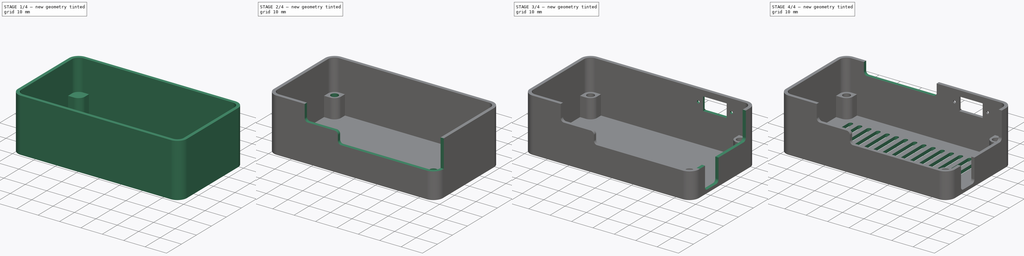
[diagram: build sequence overview — one tinted view per stage of 4, left to right]
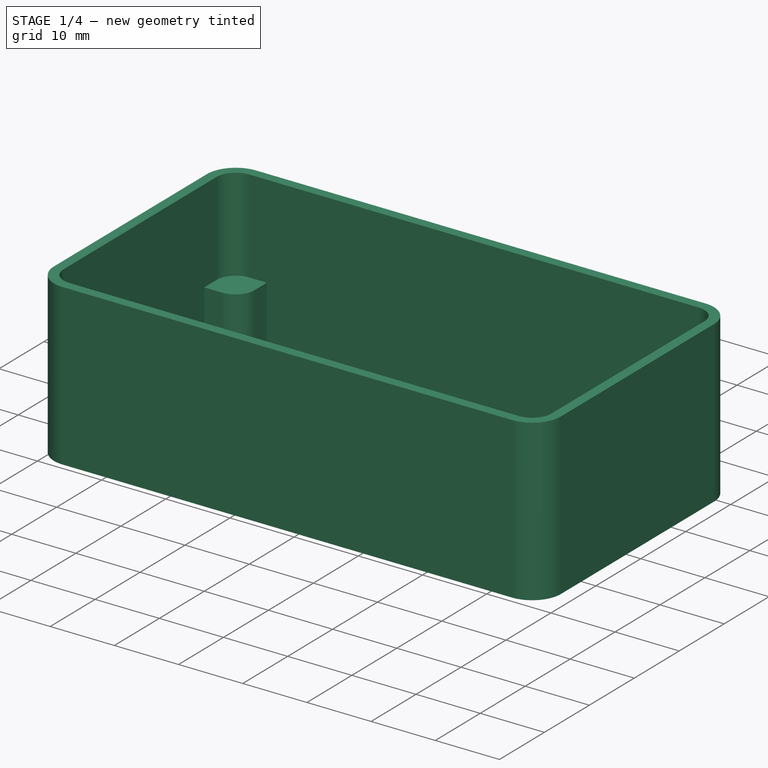
[diagram: stage 1 of 4 — iso view after this stage's code; geometry added in this stage tinted green]
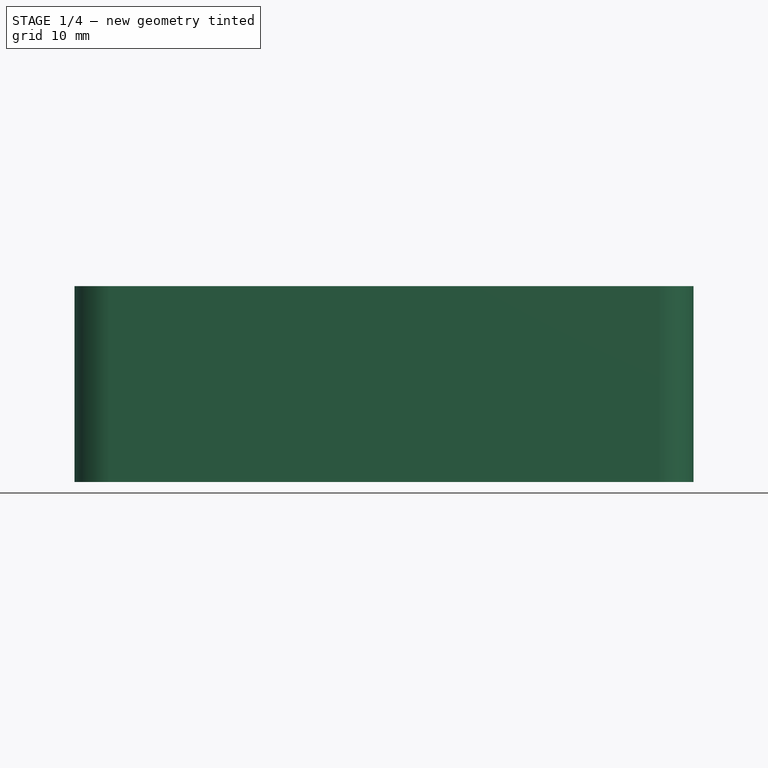
[diagram: stage 1 of 4 — front view after this stage's code; geometry added in this stage tinted green]
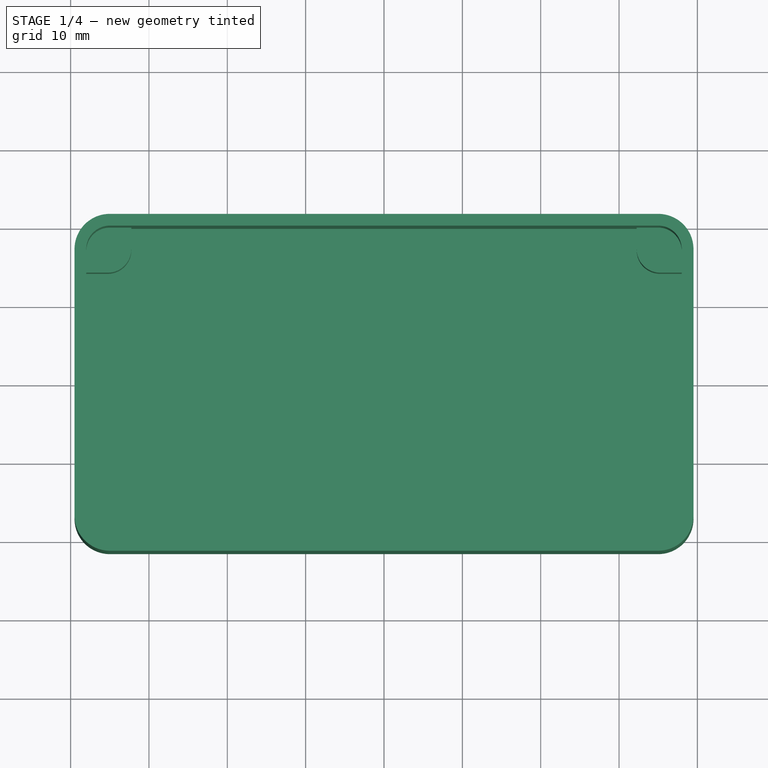
[diagram: stage 1 of 4 — top view after this stage's code; geometry added in this stage tinted green]
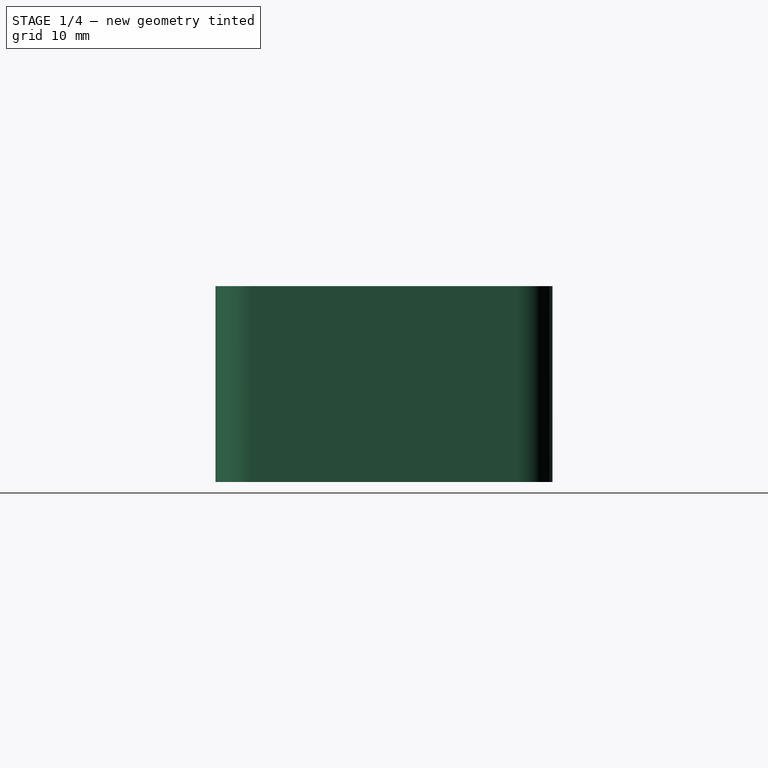
[diagram: stage 1 of 4 — right view after this stage's code; geometry added in this stage tinted green]
FCSTD DOCUMENT  (FreeCAD 0.20R29410 (Git))
Label: ENCLOSURE
License: All rights reserved
LicenseURL: http://en.wikipedia.org/wiki/All_rights_reserved
objects: Sketcher::SketchObject×10, PartDesign::Pocket×8, PartDesign::Pad×2, PartDesign::LinearPattern×1, PartDesign::Body×1
note: 32 computed .brp shape members not serialized (recipe doc carries the construction recipe); baked Part::Feature solids carry a one-line shape summary decoded from their .brp

FEATURE [Sketcher::SketchObject] Sketch
  FullyConstrained = true
  MapMode = 5
  Support = -> [XY_Plane]
  sketch-geometry (16):
    g0: LineSegment StartX=-35 StartY=20 StartZ=0 EndX=35 EndY=20 EndZ=0
    g1: LineSegment StartX=38 StartY=17 StartZ=0 EndX=38 EndY=-17 EndZ=0
    g2: LineSegment StartX=35 StartY=-20 StartZ=0 EndX=-35 EndY=-20 EndZ=0
    g3: LineSegment StartX=-38 StartY=-17 StartZ=0 EndX=-38 EndY=17 EndZ=0
    g4: ArcOfCircle CenterX=-35 CenterY=17 CenterZ=0 NormalX=0 NormalY=0 NormalZ=1 AngleXU=0 Radius=3 StartAngle=1.5708 EndAngle=3.14159
    g5: ArcOfCircle CenterX=35 CenterY=17 CenterZ=0 NormalX=0 NormalY=0 NormalZ=1 AngleXU=0 Radius=3 StartAngle=2e-16 EndAngle=1.5708
    g6: ArcOfCircle CenterX=35 CenterY=-17 CenterZ=0 NormalX=0 NormalY=0 NormalZ=1 AngleXU=0 Radius=3 StartAngle=4.71239 EndAngle=6.28319
    g7: ArcOfCircle CenterX=-35 CenterY=-17 CenterZ=0 NormalX=0 NormalY=0 NormalZ=1 AngleXU=0 Radius=3 StartAngle=3.14159 EndAngle=4.71239
    g8: LineSegment StartX=-35 StartY=21.5 StartZ=0 EndX=35 EndY=21.5 EndZ=0
    g9: LineSegment StartX=39.5 StartY=17 StartZ=0 EndX=39.5 EndY=-17 EndZ=0
    g10: LineSegment StartX=35 StartY=-21.5 StartZ=0 EndX=-35 EndY=-21.5 EndZ=0
    g11: LineSegment StartX=-39.5 StartY=-17 StartZ=0 EndX=-39.5 EndY=17 EndZ=0
    g12: ArcOfCircle CenterX=-35 CenterY=17 CenterZ=0 NormalX=0 NormalY=0 NormalZ=1 AngleXU=0 Radius=4.5 StartAngle=1.5708 EndAngle=3.14159
    g13: ArcOfCircle CenterX=-35 CenterY=-17 CenterZ=0 NormalX=0 NormalY=0 NormalZ=1 AngleXU=0 Radius=4.5 StartAngle=3.14159 EndAngle=4.71239
    g14: ArcOfCircle CenterX=35 CenterY=17 CenterZ=0 NormalX=0 NormalY=0 NormalZ=1 AngleXU=0 Radius=4.5 StartAngle=0 EndAngle=1.5708
    g15: ArcOfCircle CenterX=35 CenterY=-17 CenterZ=0 NormalX=0 NormalY=0 NormalZ=1 AngleXU=0 Radius=4.5 StartAngle=4.71239 EndAngle=6.28319
  constraints (35):
    c: Horizontal(g0)
    c: Horizontal(g2)
    c: Vertical(g1)
    c: Vertical(g3)
    c: Tangent(g3,g4) = 1.5708
    c: Tangent(g0,g4) = 1.5708
    c: Tangent(g0,g5) = 1.5708
    c: Tangent(g1,g5) = 1.5708
    c: Tangent(g2,g6) = 1.5708
    c: Tangent(g1,g6) = 1.5708
    c: Tangent(g3,g7) = 1.5708
    c: Tangent(g2,g7) = 1.5708
    c: Equal(g7,g4)
    c: Equal(g4,g5)
    c: Equal(g5,g6)
    c: Radius(g5) = 3
    c: Symmetric(g4,g6,g-1)
    c: DistanceY(g2,g0) = 40
    c: Horizontal(g8)
    c: Horizontal(g10)
    c: Vertical(g9)
    c: Tangent(g11,g12) = 1.5708
    c: Tangent(g8,g12) = 1.5708
    c: Tangent(g11,g13) = 1.5708
    c: Tangent(g10,g13) = 1.5708
    c: Tangent(g8,g14) = 1.5708
    c: Tangent(g9,g14) = 1.5708
    c: Tangent(g9,g15) = 1.5708
    c: Tangent(g10,g15) = 1.5708
    c: Coincident(g13,g7)
    c: DistanceX(g3,g1) = 76
    c: Symmetric(g11,g9,g-2)
    c: Coincident(g15,g6)
    c: DistanceX(g11,g3) = 1.5
    c: Coincident(g12,g4)
FEATURE [PartDesign::Pad] Pad
  Direction = (0,0,1)
  Length = 25
  Length2 = 10
  Profile = -> Sketch
  ReferenceAxis = -> Sketch [N_Axis]
  Type = 0
FEATURE [Sketcher::SketchObject] Sketch001
  ExternalGeometry = -> [Pad]
  FullyConstrained = true
  MapMode = 5
  Placement = pos=(0,0,25) rot=(0,0,1;0rad)
  Support = -> [Pad]
  sketch-geometry (8):
    g0: LineSegment StartX=35 StartY=20 StartZ=0 EndX=-35 EndY=20 EndZ=0
    g1: LineSegment StartX=-38 StartY=17 StartZ=0 EndX=-38 EndY=-17 EndZ=0
    g2: LineSegment StartX=-35 StartY=-20 StartZ=0 EndX=35 EndY=-20 EndZ=0
    g3: LineSegment StartX=38 StartY=-17 StartZ=0 EndX=38 EndY=17 EndZ=0
    g4: ArcOfCircle CenterX=35 CenterY=17 CenterZ=0 NormalX=0 NormalY=0 NormalZ=1 AngleXU=0 Radius=3 StartAngle=1.3017e-12 EndAngle=1.5708
    g5: ArcOfCircle CenterX=35 CenterY=-17 CenterZ=0 NormalX=0 NormalY=0 NormalZ=1 AngleXU=0 Radius=3 StartAngle=4.71239 EndAngle=6.28319
    g6: ArcOfCircle CenterX=-35 CenterY=-17 CenterZ=0 NormalX=0 NormalY=0 NormalZ=1 AngleXU=0 Radius=3 StartAngle=3.14159 EndAngle=4.71239
    g7: ArcOfCircle CenterX=-35 CenterY=17 CenterZ=0 NormalX=0 NormalY=0 NormalZ=1 AngleXU=0 Radius=3 StartAngle=1.5708 EndAngle=3.14159
  constraints (18):
    c: Horizontal(g0)
    c: Horizontal(g2)
    c: Vertical(g1)
    c: Vertical(g3)
    c: Tangent(g0,g4) = -1.5708
    c: Tangent(g3,g4) = -1.5708
    c: Tangent(g3,g5) = -1.5708
    c: Tangent(g2,g5) = -1.5708
    c: Tangent(g1,g6) = -1.5708
    c: Tangent(g2,g6) = -1.5708
    c: Tangent(g1,g7) = -1.5708
    c: Tangent(g0,g7) = -1.5708
    c: Equal(g7,g4)
    c: Equal(g4,g5)
    c: Equal(g5,g6)
    c: Coincident(g-5,g4)
    c: DistanceX(g3,g-5) = 1.5
    c: Coincident(g6,g-6)
FEATURE [PartDesign::Pocket] Pocket
  BaseFeature = -> Pad
  Direction = (0,0,-1)
  Length = 23.5
  Length2 = 5
  Profile = -> Sketch001
  ReferenceAxis = -> Sketch001 [N_Axis]
  Type = 0
FEATURE [Sketcher::SketchObject] Sketch002
  ExternalGeometry = -> [Pocket]
  FullyConstrained = true
  MapMode = 5
  Placement = pos=(0,0,1.5) rot=(0,0,1;0rad)
  Support = -> [Pocket]
  sketch-geometry (28):
    g0: LineSegment StartX=-35 StartY=20 StartZ=0 EndX=-32.25 EndY=20 EndZ=0
    g1: LineSegment StartX=-32.25 StartY=20 StartZ=0 EndX=-32.25 EndY=17.25 EndZ=0
    g2: LineSegment StartX=-35.25 StartY=14.25 StartZ=0 EndX=-38 EndY=14.25 EndZ=0
    g3: LineSegment StartX=-38 StartY=14.25 StartZ=0 EndX=-38 EndY=17 EndZ=0
    g4: LineSegment StartX=35 StartY=20 StartZ=0 EndX=32.25 EndY=20 EndZ=0
    g5: LineSegment StartX=32.25 StartY=20 StartZ=0 EndX=32.25 EndY=17.25 EndZ=0
    g6: LineSegment StartX=35.25 StartY=14.25 StartZ=0 EndX=38 EndY=14.25 EndZ=0
    g7: LineSegment StartX=38 StartY=14.25 StartZ=0 EndX=38 EndY=17 EndZ=0
    g8: LineSegment StartX=-38 StartY=-14.25 StartZ=0 EndX=-35.25 EndY=-14.25 EndZ=0
    g9: LineSegment StartX=-32.25 StartY=-17.25 StartZ=0 EndX=-32.25 EndY=-20 EndZ=0
    g10: LineSegment StartX=-32.25 StartY=-20 StartZ=0 EndX=-35 EndY=-20 EndZ=0
    g11: LineSegment StartX=-38 StartY=-17 StartZ=0 EndX=-38 EndY=-14.25 EndZ=0
    g12: LineSegment StartX=35.25 StartY=-14.25 StartZ=0 EndX=38 EndY=-14.25 EndZ=0
    g13: LineSegment StartX=38 StartY=-14.25 StartZ=0 EndX=38 EndY=-17 EndZ=0
    g14: LineSegment StartX=35 StartY=-20 StartZ=0 EndX=32.25 EndY=-20 EndZ=0
    g15: LineSegment StartX=32.25 StartY=-20 StartZ=0 EndX=32.25 EndY=-17.25 EndZ=0
    g16: ArcOfCircle CenterX=-35 CenterY=17 CenterZ=0 NormalX=0 NormalY=0 NormalZ=1 AngleXU=0 Radius=3 StartAngle=1.5708 EndAngle=3.14159
    g17: ArcOfCircle CenterX=-35.25 CenterY=17.25 CenterZ=0 NormalX=0 NormalY=0 NormalZ=1 AngleXU=0 Radius=3 StartAngle=4.71239 EndAngle=6.28319
    g18: ArcOfCircle CenterX=35 CenterY=17 CenterZ=0 NormalX=0 NormalY=0 NormalZ=1 AngleXU=0 Radius=3 StartAngle=0 EndAngle=1.5708
    g19: ArcOfCircle CenterX=35.25 CenterY=17.25 CenterZ=0 NormalX=0 NormalY=0 NormalZ=1 AngleXU=0 Radius=3 StartAngle=3.14159 EndAngle=4.71239
    g20: ArcOfCircle CenterX=-35.25 CenterY=-17.25 CenterZ=0 NormalX=0 NormalY=0 NormalZ=1 AngleXU=0 Radius=3 StartAngle=-3.99503e-11 EndAngle=1.5708
    g21: ArcOfCircle CenterX=-35 CenterY=-17 CenterZ=0 NormalX=0 NormalY=0 NormalZ=1 AngleXU=0 Radius=3 StartAngle=3.14159 EndAngle=4.71239
    g22: ArcOfCircle CenterX=35.25 CenterY=-17.25 CenterZ=0 NormalX=0 NormalY=0 NormalZ=1 AngleXU=0 Radius=3 StartAngle=1.5708 EndAngle=3.14159
    g23: ArcOfCircle CenterX=35 CenterY=-17 CenterZ=0 NormalX=0 NormalY=0 NormalZ=1 AngleXU=0 Radius=3 StartAngle=4.71239 EndAngle=6.28319
    g24: Circle CenterX=35.25 CenterY=17.25 CenterZ=0 NormalX=0 NormalY=0 NormalZ=1 AngleXU=0 Radius=1.6
    g25: Circle CenterX=-35.25 CenterY=17.25 CenterZ=0 NormalX=0 NormalY=0 NormalZ=1 AngleXU=0 Radius=1.6
    g26: Circle CenterX=-35.25 CenterY=-17.25 CenterZ=0 NormalX=0 NormalY=0 NormalZ=1 AngleXU=0 Radius=1.6
    g27: Circle CenterX=35.25 CenterY=-17.25 CenterZ=0 NormalX=0 NormalY=0 NormalZ=1 AngleXU=0 Radius=1.6
  constraints (68):
    c: Coincident(g0,g1)
    c: Coincident(g2,g3)
    c: Horizontal(g0)
    c: Horizontal(g2)
    c: Vertical(g1)
    c: Coincident(g4,g5)
    c: Coincident(g6,g7)
    c: Horizontal(g4)
    c: Horizontal(g6)
    c: Vertical(g5)
    c: Vertical(g7)
    c: Coincident(g9,g10)
    c: Coincident(g11,g8)
    c: Horizontal(g8)
    c: Horizontal(g10)
    c: Vertical(g9)
    c: Vertical(g11)
    c: Coincident(g12,g13)
    c: Coincident(g14,g15)
    c: Horizontal(g12)
    c: Horizontal(g14)
    c: Vertical(g13)
    c: Vertical(g15)
    c: Tangent(g3,g16) = 1.5708
    c: Tangent(g0,g16) = 1.5708
    c: Tangent(g2,g17) = 1.5708
    c: Tangent(g1,g17) = 1.5708
    c: Tangent(g4,g18) = -1.5708
    c: Tangent(g7,g18) = -1.5708
    c: Tangent(g5,g19) = -1.5708
    c: Tangent(g6,g19) = -1.5708
    c: Tangent(g8,g20) = 1.5708
    c: Tangent(g9,g20) = 1.5708
    c: Tangent(g11,g21) = 1.5708
    c: Tangent(g10,g21) = 1.5708
    c: Tangent(g15,g22) = 1.5708
    c: Tangent(g12,g22) = 1.5708
    c: Tangent(g14,g23) = 1.5708
    c: Tangent(g13,g23) = 1.5708
    c: Equal(g18,g23)
    c: Equal(g23,g21)
    c: Equal(g21,g16)
    c: Equal(g20,g22)
    c: Equal(g22,g19)
    c: Equal(g19,g17)
    c: Equal(g1,g5)
    c: Equal(g2,g6)
    c: Equal(g6,g12)
    c: Equal(g12,g15)
    c: Equal(g15,g9)
    c: Equal(g9,g8)
    c: Coincident(g21,g-4)
    c: Coincident(g16,g-3)
    c: Coincident(g3,g-3)
    c: Coincident(g-5,g23)
    c: Coincident(g18,g-6)
    c: Equal(g6,g5)
    c: Equal(g25,g24)
    c: Equal(g24,g27)
    c: Equal(g27,g26)
    c: Diameter(g26) = 3.2
    c: Symmetric(g25,g27,g-1)
    c: Symmetric(g26,g24,g-1)
    c: DistanceX(g25,g24) = 70.5
    c: DistanceY(g26,g25) = 34.5
    c: Vertical(g27,g24)
    c: Coincident(g22,g27)
    c: Radius(g22) = 3
FEATURE [PartDesign::Pad] Pad001
  BaseFeature = -> Pocket
  Direction = (0,0,1)
  Length = 9
  Length2 = 10
  Profile = -> Sketch002
  ReferenceAxis = -> Sketch002 [N_Axis]
  Type = 0
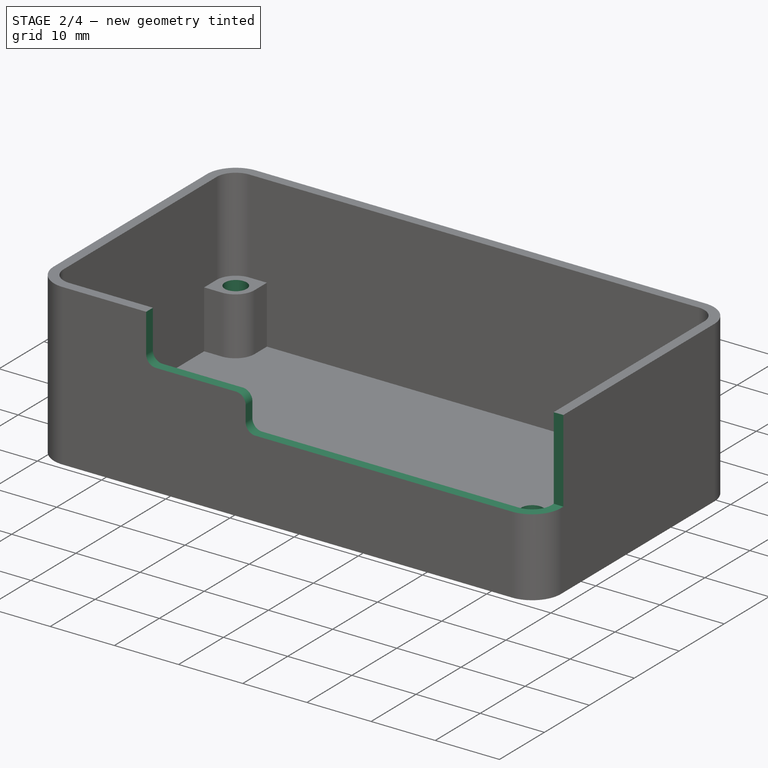
[diagram: stage 2 of 4 — iso view after this stage's code; geometry added in this stage tinted green]
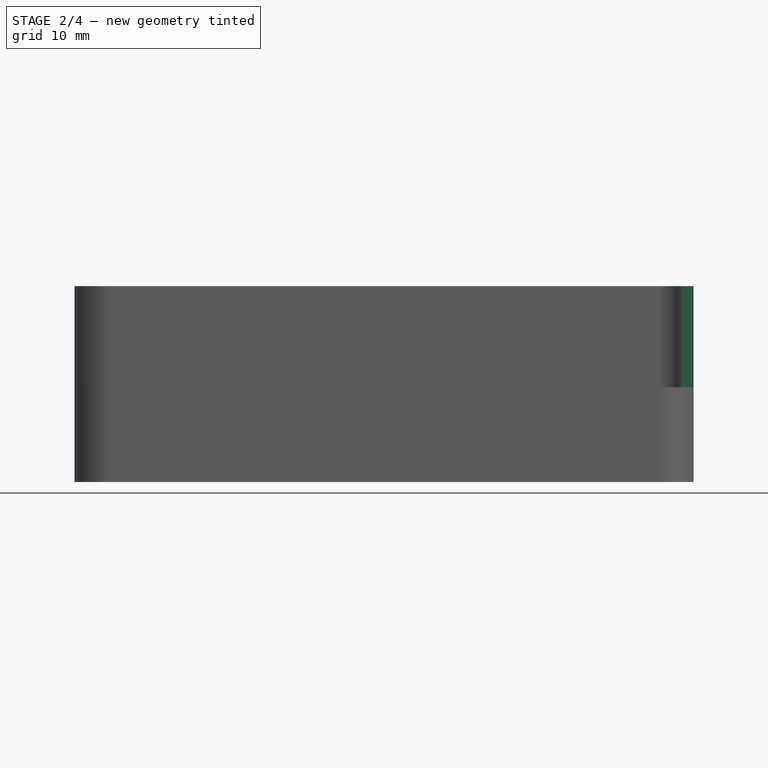
[diagram: stage 2 of 4 — front view after this stage's code; geometry added in this stage tinted green]
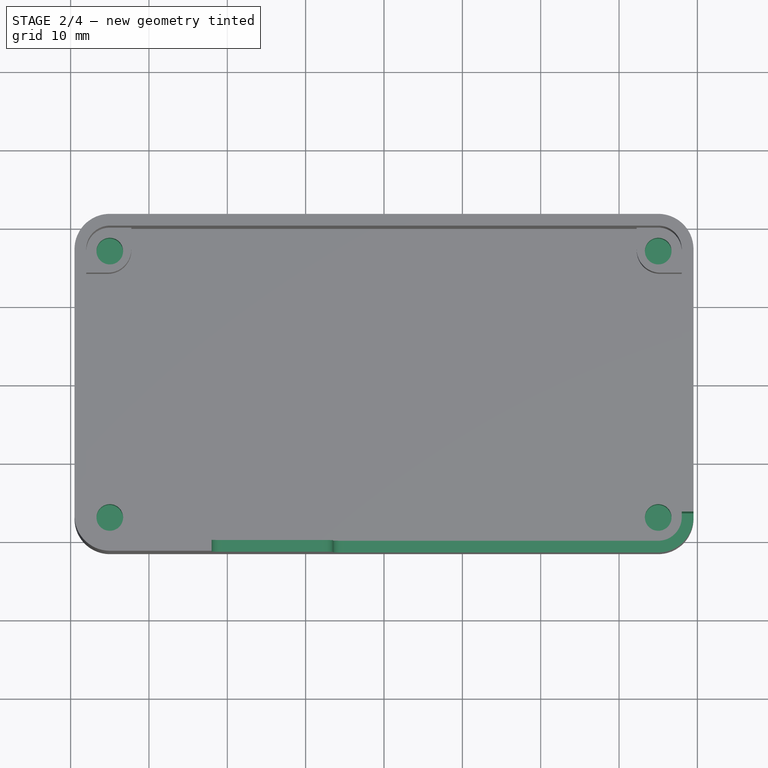
[diagram: stage 2 of 4 — top view after this stage's code; geometry added in this stage tinted green]
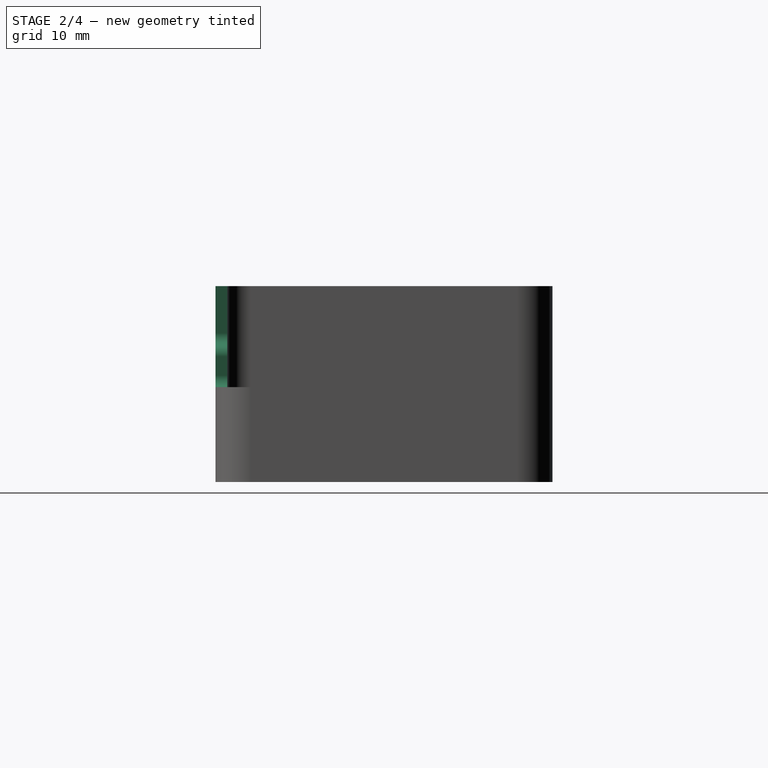
[diagram: stage 2 of 4 — right view after this stage's code; geometry added in this stage tinted green]
FEATURE [Sketcher::SketchObject] Sketch003
  ExternalGeometry = -> [Pad001]
  FullyConstrained = true
  MapMode = 5
  Placement = pos=(0,0,10.5) rot=(0,0,1;0rad)
  Support = -> [Pad001]
  sketch-geometry (4):
    g0: Circle CenterX=-35 CenterY=17 CenterZ=0 NormalX=0 NormalY=0 NormalZ=1 AngleXU=0 Radius=1.7
    g1: Circle CenterX=-35 CenterY=-17 CenterZ=0 NormalX=0 NormalY=0 NormalZ=1 AngleXU=0 Radius=1.7
    g2: Circle CenterX=35 CenterY=-17 CenterZ=0 NormalX=0 NormalY=0 NormalZ=1 AngleXU=0 Radius=1.7
    g3: Circle CenterX=35 CenterY=17 CenterZ=0 NormalX=0 NormalY=0 NormalZ=1 AngleXU=0 Radius=1.7
  constraints (8):
    c: Coincident(g0,g-6)
    c: Coincident(g1,g-4)
    c: Coincident(g2,g-3)
    c: Coincident(g3,g-5)
    c: Equal(g3,g2)
    c: Equal(g2,g1)
    c: Equal(g1,g0)
    c: Diameter(g0) = 3.4
FEATURE [PartDesign::Pocket] Pocket001
  BaseFeature = -> Pad001
  Direction = (0,0,-1)
  Length = 6
  Length2 = 5
  Profile = -> Sketch003
  ReferenceAxis = -> Sketch003 [N_Axis]
  Type = 0
FEATURE [Sketcher::SketchObject] Sketch004
  ExternalGeometry = -> [Pocket001]
  FullyConstrained = true
  MapMode = 5
  Placement = pos=(0,-21.5,0) rot=(1,0,0;1.5708rad)
  Support = -> [Pocket001]
  sketch-geometry (9):
    g0: LineSegment StartX=-22 StartY=25 StartZ=0 EndX=39.5 EndY=25 EndZ=0
    g1: LineSegment StartX=-22 StartY=19 StartZ=0 EndX=-22 EndY=25 EndZ=0
    g2: ArcOfCircle CenterX=-20.5 CenterY=19 CenterZ=0 NormalX=0 NormalY=0 NormalZ=1 AngleXU=0 Radius=1.5 StartAngle=3.14159 EndAngle=4.71239
    g3: LineSegment StartX=-20.5 StartY=17.5 StartZ=0 EndX=-8 EndY=17.5 EndZ=0
    g4: LineSegment StartX=-6.5 StartY=16 StartZ=0 EndX=-6.5 EndY=13.6 EndZ=0
    g5: LineSegment StartX=-5 StartY=12.1 StartZ=0 EndX=39.5 EndY=12.1 EndZ=0
    g6: LineSegment StartX=39.5 StartY=12.1 StartZ=0 EndX=39.5 EndY=25 EndZ=0
    g7: ArcOfCircle CenterX=-5 CenterY=13.6 CenterZ=0 NormalX=0 NormalY=0 NormalZ=1 AngleXU=0 Radius=1.5 StartAngle=3.14159 EndAngle=4.71239
    g8: ArcOfCircle CenterX=-8 CenterY=16 CenterZ=0 NormalX=0 NormalY=0 NormalZ=1 AngleXU=0 Radius=1.5 StartAngle=5e-16 EndAngle=1.5708
  constraints (23):
    c: Coincident(g1,g0)
    c: Horizontal(g0)
    c: Vertical(g1)
    c: Tangent(g1,g2) = 1.5708
    c: DistanceX(g-3,g0) = 16
    c: Coincident(g0,g-4)
    c: Tangent(g2,g3) = -1.5708
    c: Horizontal(g5)
    c: Coincident(g5,g6)
    c: Coincident(g6,g0)
    c: Vertical(g6)
    c: Vertical(g4)
    c: Tangent(g4,g7) = -1.5708
    c: Tangent(g5,g7) = -1.5708
    c: DistanceY(g-6,g5) = 1.6
    c: Equal(g7,g2)
    c: Radius(g7) = 1.5
    c: Horizontal(g3)
    c: DistanceY(g2,g0) = 7.5
    c: Tangent(g3,g8) = 1.5708
    c: Tangent(g4,g8) = 1.5708
    c: Equal(g7,g8)
    c: DistanceX(g1,g4) = 15.5
FEATURE [PartDesign::Pocket] Pocket002
  BaseFeature = -> Pocket001
  Direction = (0,1,-2e-16)
  Length = 5
  Length2 = 5
  Profile = -> Sketch004
  ReferenceAxis = -> Sketch004 [N_Axis]
  Type = 0
FEATURE [Sketcher::SketchObject] Sketch005
  ExternalGeometry = -> [Pocket002]
  FullyConstrained = true
  MapMode = 5
  Placement = pos=(0,21.5,0) rot=(0,0.707107,0.707107;3.14159rad)
  Support = -> [Pocket002]
  sketch-geometry (4):
    g0: LineSegment StartX=-31 StartY=22 StartZ=0 EndX=-11 EndY=22 EndZ=0
    g1: LineSegment StartX=-11 StartY=22 StartZ=0 EndX=-11 EndY=16.5 EndZ=0
    g2: LineSegment StartX=-11 StartY=16.5 StartZ=0 EndX=-31 EndY=16.5 EndZ=0
    g3: LineSegment StartX=-31 StartY=16.5 StartZ=0 EndX=-31 EndY=22 EndZ=0
  constraints (12):
    c: Coincident(g0,g1)
    c: Coincident(g1,g2)
    c: Coincident(g2,g3)
    c: Coincident(g3,g0)
    c: Horizontal(g2)
    c: Vertical(g1)
    c: Vertical(g3)
    c: DistanceY(g3,g3) = 5.5
    c: DistanceX(g0,g0) = 20
    c: Horizontal(g0)
    c: DistanceX(g1,g-1) = 11
    c: DistanceY(g0,g-3) = 3
FEATURE [PartDesign::Pocket] Pocket003
  BaseFeature = -> Pocket002
  Direction = (0,-1,2e-16)
  Length = 0.5
  Length2 = 5
  Profile = -> Sketch005
  ReferenceAxis = -> Sketch005 [N_Axis]
  Type = 0
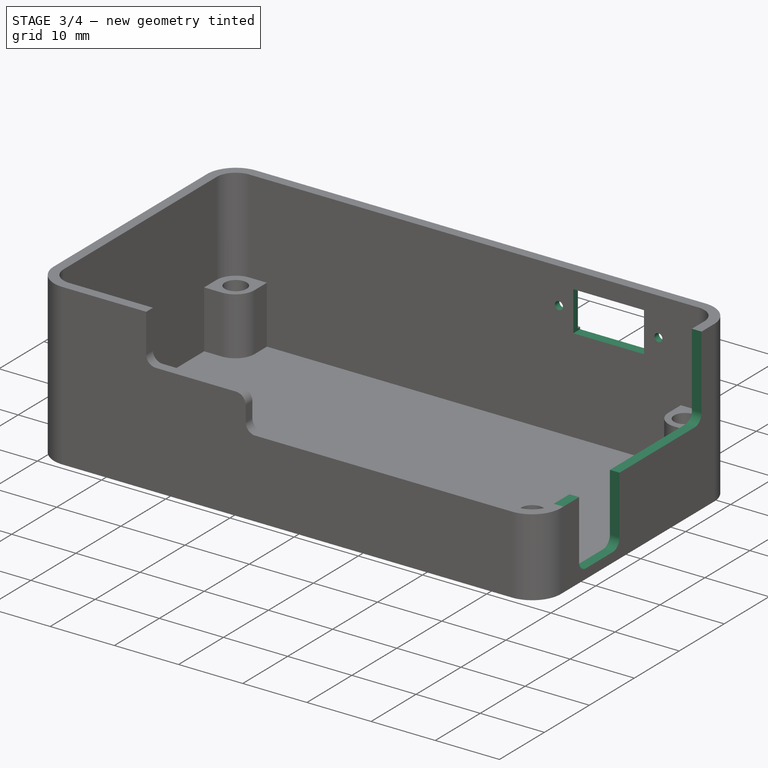
[diagram: stage 3 of 4 — iso view after this stage's code; geometry added in this stage tinted green]
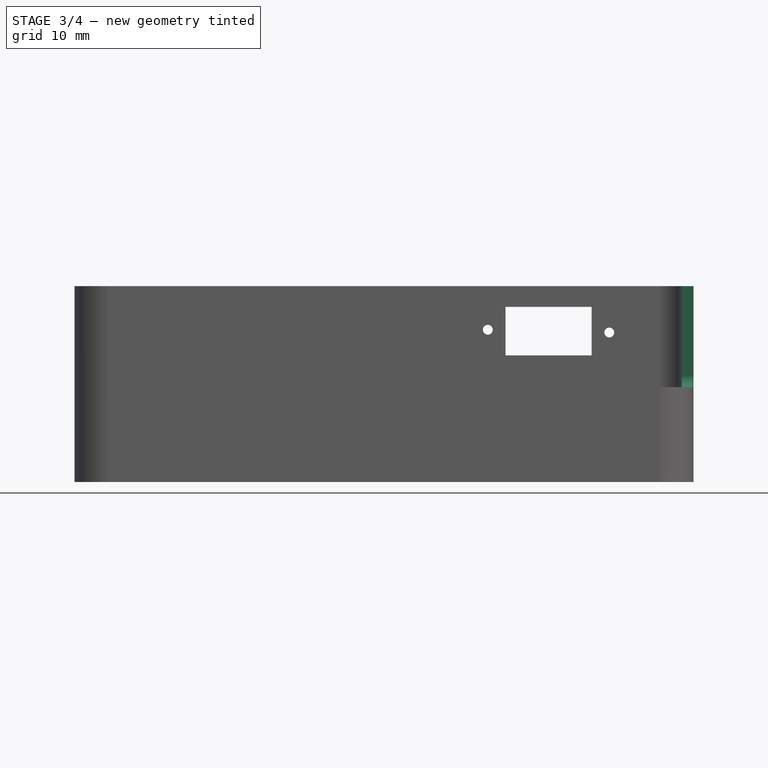
[diagram: stage 3 of 4 — front view after this stage's code; geometry added in this stage tinted green]
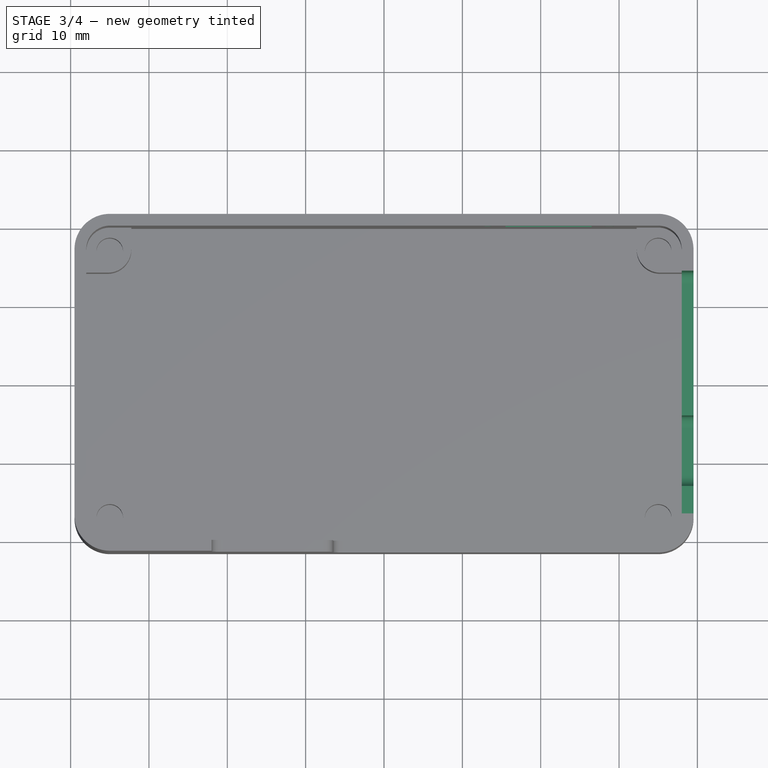
[diagram: stage 3 of 4 — top view after this stage's code; geometry added in this stage tinted green]
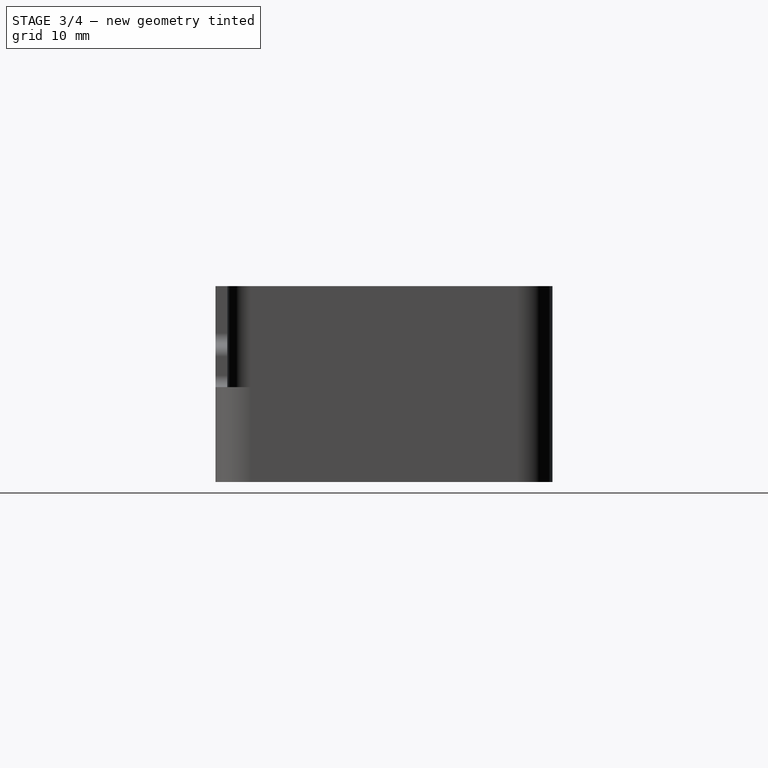
[diagram: stage 3 of 4 — right view after this stage's code; geometry added in this stage tinted green]
FEATURE [Sketcher::SketchObject] Sketch006
  ExternalGeometry = -> [Pocket003]
  FullyConstrained = true
  MapMode = 5
  Placement = pos=(0,21.5,0) rot=(0,0.707107,0.707107;3.14159rad)
  Support = -> [Pocket003]
  sketch-geometry (7):
    g0: LineSegment StartX=-26.5 StartY=22.35 StartZ=0 EndX=-15.5 EndY=22.35 EndZ=0
    g1: LineSegment StartX=-15.5 StartY=22.35 StartZ=0 EndX=-15.5 EndY=16.15 EndZ=0
    g2: LineSegment StartX=-15.5 StartY=16.15 StartZ=0 EndX=-26.5 EndY=16.15 EndZ=0
    g3: LineSegment StartX=-26.5 StartY=16.15 StartZ=0 EndX=-26.5 EndY=22.35 EndZ=0
    g4: Circle CenterX=-13.25 CenterY=19.425 CenterZ=0 NormalX=0 NormalY=0 NormalZ=1 AngleXU=0 Radius=0.625
    g5: Circle CenterX=-28.75 CenterY=19.075 CenterZ=0 NormalX=0 NormalY=0 NormalZ=1 AngleXU=0 Radius=0.625
    g6: GeomPoint X=-21 Y=19.25 Z=0
  constraints (16):
    c: Coincident(g0,g1)
    c: Coincident(g1,g2)
    c: Coincident(g2,g3)
    c: Coincident(g3,g0)
    c: Horizontal(g0)
    c: Horizontal(g2)
    c: Vertical(g1)
    c: Vertical(g3)
    c: DistanceX(g2,g2) = 11
    c: DistanceY(g1,g1) = 6.2
    c: Equal(g5,g4)
    c: Diameter(g4) = 1.25
    c: Symmetric(g-4,g-3,g6)
    c: Symmetric(g2,g0,g6)
    c: Symmetric(g2,g-3,g5)
    c: Symmetric(g-4,g0,g4)
FEATURE [PartDesign::Pocket] Pocket004
  BaseFeature = -> Pocket003
  Direction = (0,-1,2e-16)
  Length = 5
  Length2 = 5
  Profile = -> Sketch006
  ReferenceAxis = -> Sketch006 [N_Axis]
  Type = 0
FEATURE [Sketcher::SketchObject] Sketch007
  ExternalGeometry = -> [Pocket004]
  FullyConstrained = true
  MapMode = 5
  Placement = pos=(39.5,0,0) rot=(0.57735,0.57735,0.57735;2.0944rad)
  Support = -> [Pocket004]
  sketch-geometry (11):
    g0: LineSegment StartX=-11.5 StartY=1.5 StartZ=0 EndX=-5.5 EndY=1.5 EndZ=0
    g1: LineSegment StartX=-4 StartY=3 StartZ=0 EndX=-4 EndY=12.1 EndZ=0
    g2: ArcOfCircle CenterX=-11.5 CenterY=3 CenterZ=0 NormalX=0 NormalY=0 NormalZ=1 AngleXU=0 Radius=1.5 StartAngle=3.14159 EndAngle=4.71239
    g3: ArcOfCircle CenterX=-5.5 CenterY=3 CenterZ=0 NormalX=0 NormalY=0 NormalZ=1 AngleXU=0 Radius=1.5 StartAngle=4.71239 EndAngle=6.28319
    g4: LineSegment StartX=-4 StartY=12.1 StartZ=0 EndX=12.75 EndY=12.1 EndZ=0
    g5: LineSegment StartX=14.25 StartY=13.6 StartZ=0 EndX=14.25 EndY=25 EndZ=0
    g6: LineSegment StartX=14.25 StartY=25 StartZ=0 EndX=-16.5 EndY=25 EndZ=0
    g7: ArcOfCircle CenterX=12.75 CenterY=13.6 CenterZ=0 NormalX=0 NormalY=0 NormalZ=1 AngleXU=0 Radius=1.5 StartAngle=4.71239 EndAngle=6.28319
    g8: LineSegment StartX=-13 StartY=3 StartZ=0 EndX=-13 EndY=12.1 EndZ=0
    g9: LineSegment StartX=-13 StartY=12.1 StartZ=0 EndX=-16.5 EndY=12.1 EndZ=0
    g10: LineSegment StartX=-16.5 StartY=12.1 StartZ=0 EndX=-16.5 EndY=25 EndZ=0
  constraints (28):
    c: Horizontal(g0)
    c: Tangent(g0,g2) = -1.5708
    c: Tangent(g0,g3) = -1.5708
    c: Tangent(g1,g3) = -1.5708
    c: Equal(g3,g2)
    c: Vertical(g1)
    c: DistanceX(g2,g1) = 9
    c: Horizontal(g2,g2)
    c: DistanceX(g-4,g2) = 8.5
    c: Coincident(g1,g4)
    c: Horizontal(g4)
    c: PointOnObject(g5,g-5)
    c: Coincident(g5,g6)
    c: Tangent(g4,g7) = -1.5708
    c: Tangent(g5,g7) = -1.5708
    c: Vertical(g5,g-6)
    c: Vertical(g5)
    c: Equal(g3,g7)
    c: Horizontal(g-3,g0)
    c: Radius(g7) = 1.5
    c: Tangent(g2,g8) = 1.5708
    c: Coincident(g8,g9)
    c: Coincident(g9,g-7)
    c: Coincident(g9,g10)
    c: Coincident(g10,g6)
    c: Coincident(g6,g-7)
    c: Horizontal(g9)
    c: Horizontal(g1,g8)
FEATURE [PartDesign::Pocket] Pocket005
  BaseFeature = -> Pocket004
  Direction = (-1,0,0)
  Length = 5
  Length2 = 5
  Profile = -> Sketch007
  ReferenceAxis = -> Sketch007 [N_Axis]
  Type = 0
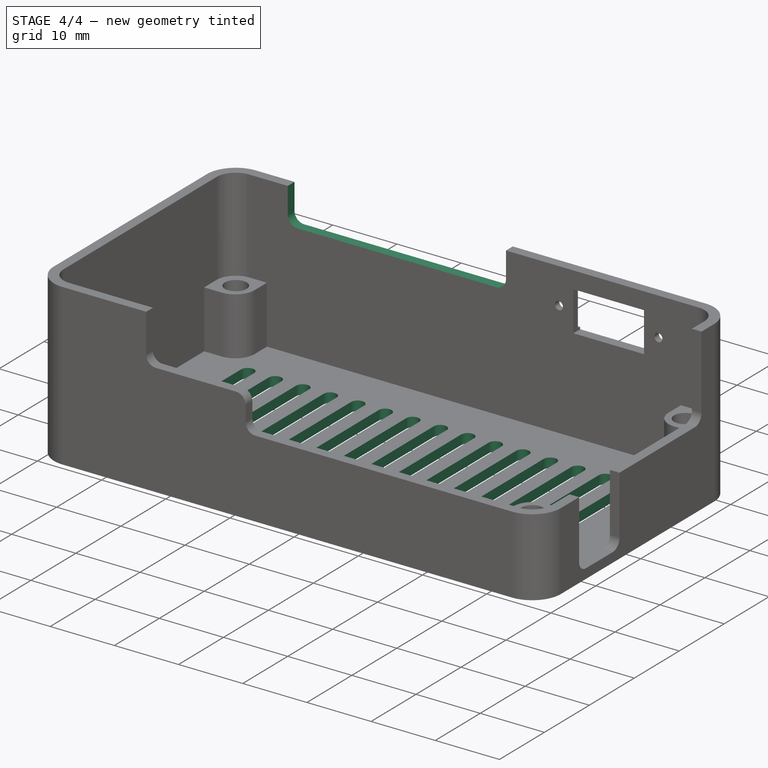
[diagram: stage 4 of 4 — iso view after this stage's code; geometry added in this stage tinted green]
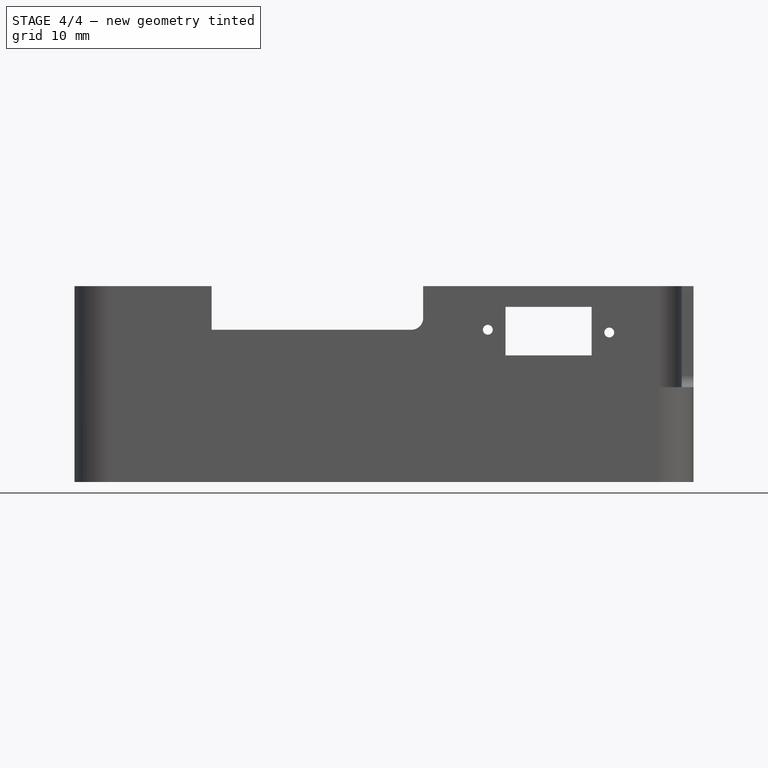
[diagram: stage 4 of 4 — front view after this stage's code; geometry added in this stage tinted green]
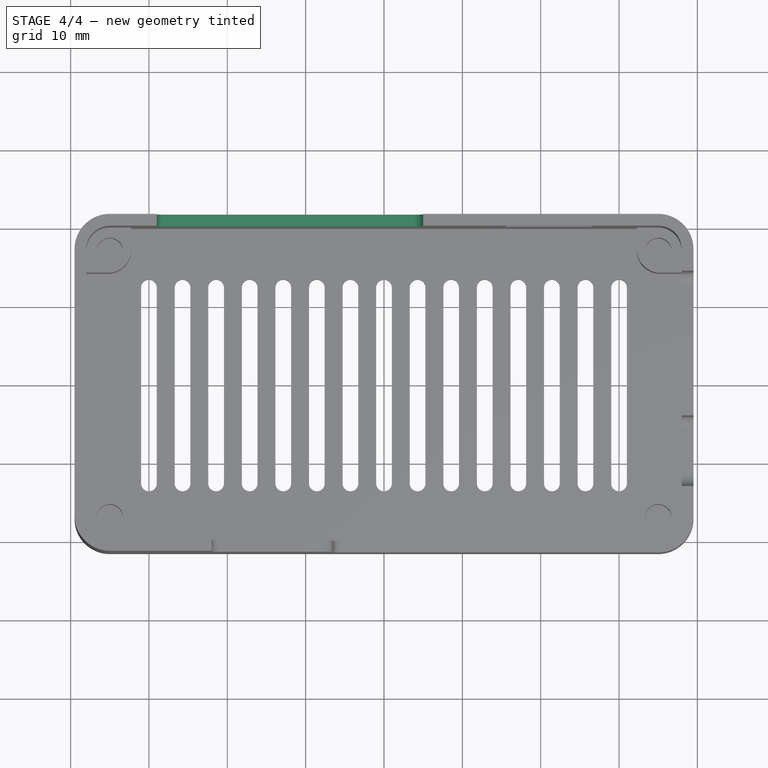
[diagram: stage 4 of 4 — top view after this stage's code; geometry added in this stage tinted green]
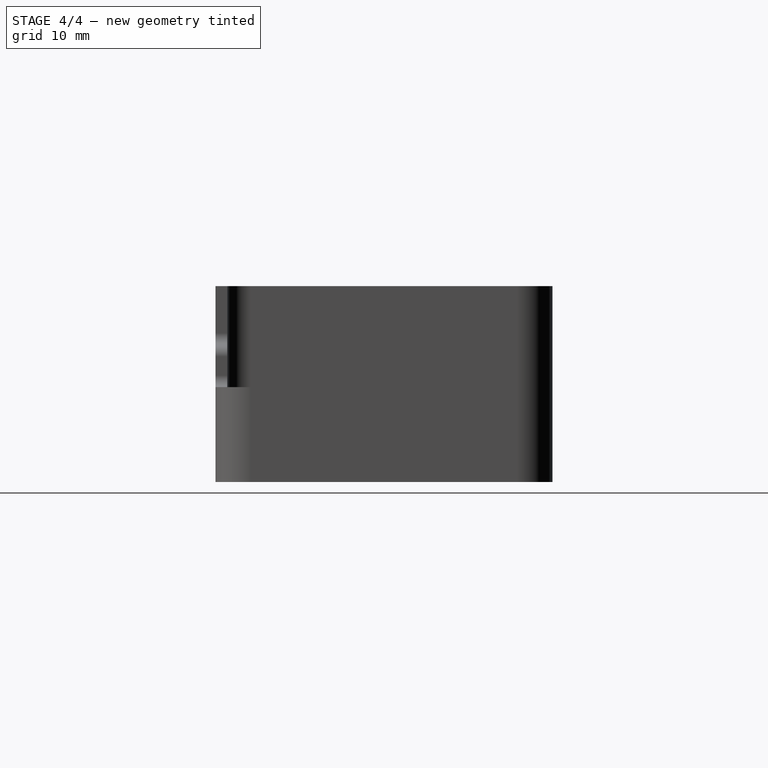
[diagram: stage 4 of 4 — right view after this stage's code; geometry added in this stage tinted green]
FEATURE [Sketcher::SketchObject] Sketch008
  FullyConstrained = true
  MapMode = 5
  Placement = pos=(0,0,0) rot=(1,0,0;3.14159rad)
  Support = -> [Pocket005]
  sketch-geometry (4):
    g0: ArcOfCircle CenterX=-30 CenterY=12.5 CenterZ=0 NormalX=0 NormalY=0 NormalZ=1 AngleXU=0 Radius=1 StartAngle=8e-16 EndAngle=3.14159
    g1: ArcOfCircle CenterX=-30 CenterY=-12.5 CenterZ=0 NormalX=0 NormalY=0 NormalZ=1 AngleXU=0 Radius=1 StartAngle=3.14159 EndAngle=6.28319
    g2: LineSegment StartX=-31 StartY=12.5 StartZ=0 EndX=-31 EndY=-12.5 EndZ=0
    g3: LineSegment StartX=-29 StartY=-12.5 StartZ=0 EndX=-29 EndY=12.5 EndZ=0
  constraints (9):
    c: Tangent(g0,g2) = -1.5708
    c: Tangent(g2,g1) = -1.5708
    c: Tangent(g1,g3) = -1.5708
    c: Tangent(g3,g0) = -1.5708
    c: Equal(g0,g1)
    c: Symmetric(g0,g1,g-1)
    c: Radius(g0) = 1
    c: DistanceX(g0,g-1) = 30
    c: DistanceY(g3,g3) = 25
FEATURE [PartDesign::Pocket] Pocket006
  BaseFeature = -> Pocket005
  Direction = (0,0,1)
  Length = 5
  Length2 = 5
  Profile = -> Sketch008
  ReferenceAxis = -> Sketch008 [N_Axis]
  Type = 1
FEATURE [PartDesign::LinearPattern] LinearPattern
  BaseFeature = -> Pocket006
  Direction = -> Sketch008 [H_Axis]
  Length = 60
  Occurrences = 15
  Originals = -> [Pocket006]
FEATURE [Sketcher::SketchObject] Sketch009
  ExternalGeometry = -> [LinearPattern]
  FullyConstrained = true
  MapMode = 5
  Placement = pos=(0,21.5,0) rot=(0,0.707107,0.707107;3.14159rad)
  Support = -> [LinearPattern]
  sketch-geometry (6):
    g0: LineSegment StartX=-5 StartY=25 StartZ=0 EndX=29 EndY=25 EndZ=0
    g1: LineSegment StartX=29 StartY=25 StartZ=0 EndX=29 EndY=20.925 EndZ=0
    g2: LineSegment StartX=27.5 StartY=19.425 StartZ=0 EndX=-3.5 EndY=19.425 EndZ=0
    g3: LineSegment StartX=-5 StartY=20.925 StartZ=0 EndX=-5 EndY=25 EndZ=0
    g4: ArcOfCircle CenterX=-3.5 CenterY=20.925 CenterZ=0 NormalX=0 NormalY=0 NormalZ=1 AngleXU=0 Radius=1.5 StartAngle=3.14159 EndAngle=4.71239
    g5: ArcOfCircle CenterX=27.5 CenterY=20.925 CenterZ=0 NormalX=0 NormalY=0 NormalZ=1 AngleXU=0 Radius=1.5 StartAngle=4.71239 EndAngle=6.28319
  constraints (16):
    c: Coincident(g0,g1)
    c: Coincident(g3,g0)
    c: Horizontal(g0)
    c: Horizontal(g2)
    c: Vertical(g1)
    c: Vertical(g3)
    c: Tangent(g3,g4) = 1.5708
    c: Tangent(g2,g4) = 1.5708
    c: Tangent(g1,g5) = 1.5708
    c: Tangent(g2,g5) = 1.5708
    c: Equal(g5,g4)
    c: Radius(g5) = 1.5
    c: PointOnObject(g0,g-3)
    c: DistanceX(g0,g-3) = 6
    c: DistanceX(g-4,g0) = 6
    c: Horizontal(g-5,g2)
FEATURE [PartDesign::Pocket] Pocket007
  BaseFeature = -> LinearPattern
  Direction = (0,-1,2e-16)
  Length = 5
  Length2 = 5
  Profile = -> Sketch009
  ReferenceAxis = -> Sketch009 [N_Axis]
  Type = 0
FEATURE [PartDesign::Body] Body
  Group = -> [Sketch,Pad,Sketch001,Pocket,Sketch002,Pad001,Sketch003,Pocket001,Sketch004,Pocket002,Sketch005,Pocket003,Sketch006,Pocket004,Sketch007,Pocket005,Sketch008,Pocket006,LinearPattern,Sketch009,Pocket007]
  Origin = -> Origin
  Tip = -> Pocket007
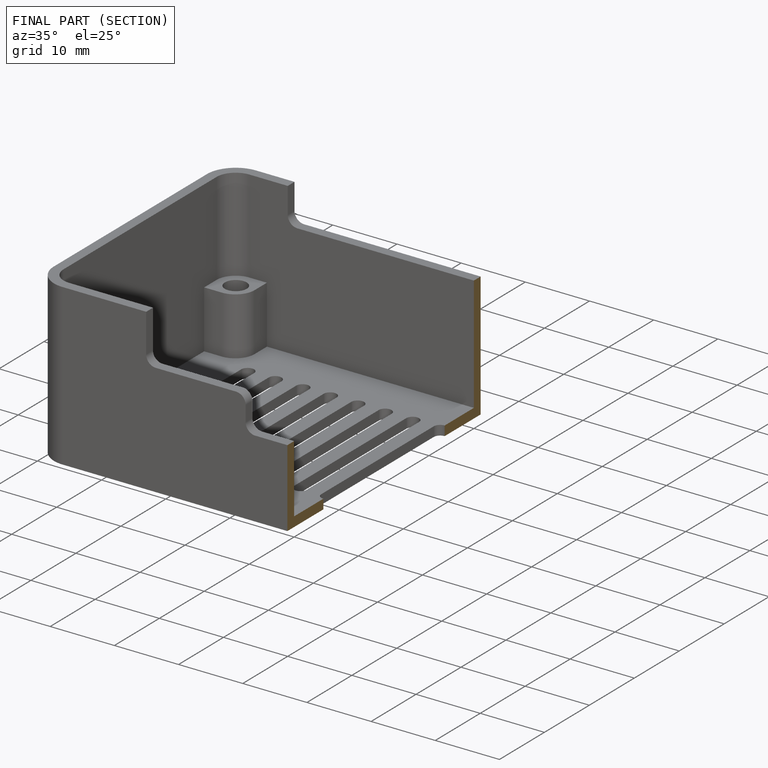
[diagram: finished part — half-section view (interior)]
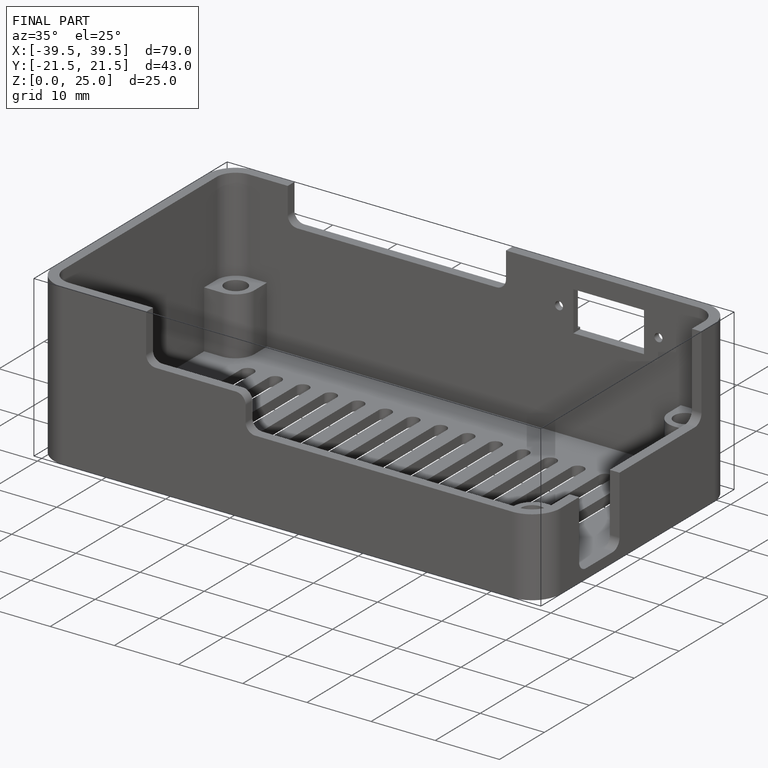
[diagram: finished part — iso view with bounding-box wireframe]
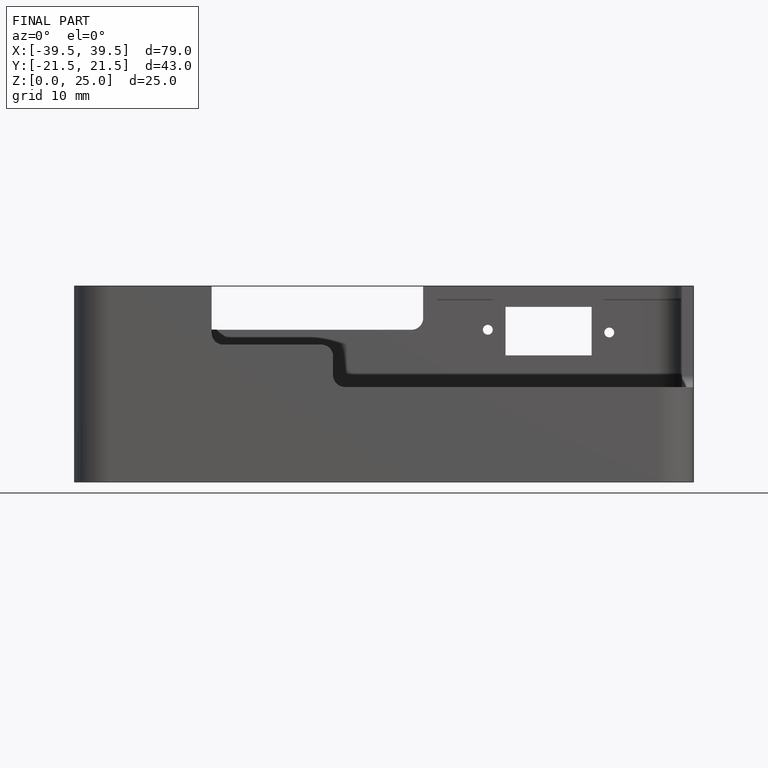
[diagram: finished part — front view with bounding-box wireframe]
